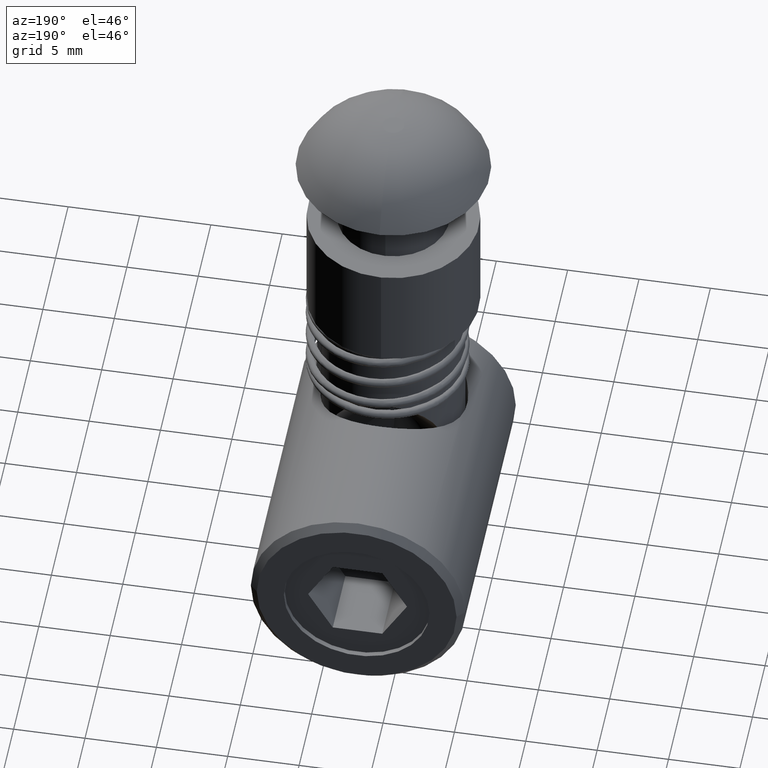
[diagram: clean part render]
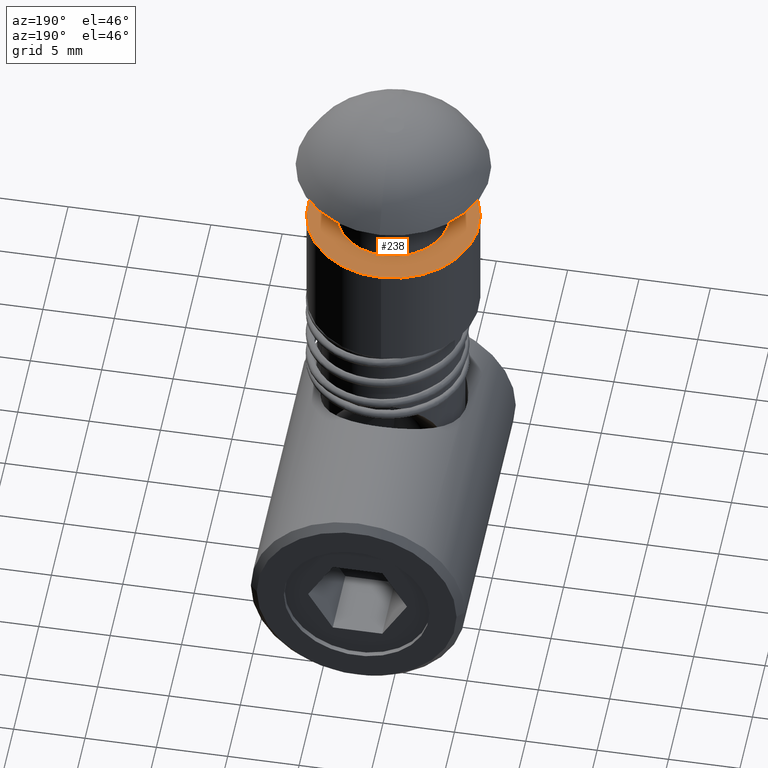
[diagram: same view with one face highlighted and labeled with its STEP entity id]
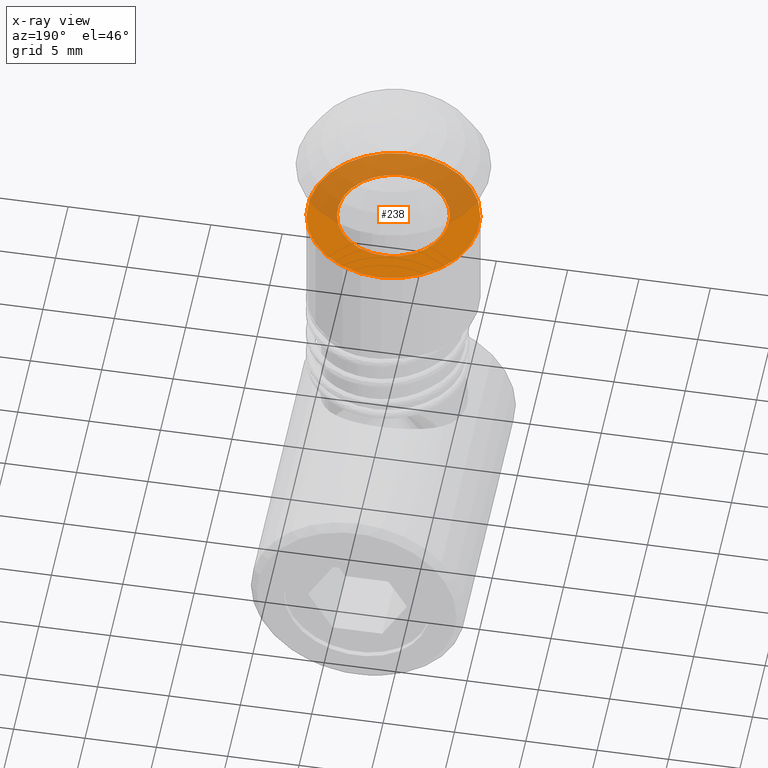
[diagram: x-ray of the same camera — body ghosted, the highlighted face saturated]
A machine part, auxiliary view. The second image highlights one B-rep face of the part: STEP entity #238.
The next image is the same camera in x-ray: the body ghosted, the highlighted face saturated — about 48% of this face is hidden behind the body in this view.
In plain terms, the highlighted planar face has unit normal (0, 0, 1).
Its self-contained STEP definition (entity closure, byte-faithful):
#23 = EDGE_CURVE ( 'NONE', #3472, #3525, #3195, .T. ) ;
#28 = EDGE_CURVE ( 'NONE', #3526, #3528, #3203, .T. ) ;
#37 = EDGE_CURVE ( 'NONE', #3528, #3526, #3212, .T. ) ;
#38 = EDGE_CURVE ( 'NONE', #3525, #3472, #3231, .T. ) ;
#238 = ADVANCED_FACE ( 'NONE', ( #3296, #3297 ), #490, .T. ) ;
#374 = AXIS2_PLACEMENT_3D ( 'NONE', #491, #492, #493 ) ;
#490 = PLANE ( 'NONE',  #374 ) ;
#491 = CARTESIAN_POINT ( 'NONE',  ( 6.072000000000000100, -6.072000000000000100, -34.00000000000000000 ) ) ;
#492 = DIRECTION ( 'NONE',  ( 0.0000000000000000000, 0.0000000000000000000, -1.000000000000000000 ) ) ;
#493 = DIRECTION ( 'NONE',  ( -1.000000000000000000, 0.0000000000000000000, 0.0000000000000000000 ) ) ;
#2021 = CARTESIAN_POINT ( 'NONE',  ( -6.000000000000000000, 7.347880794884119700E-016, -34.00000000000000000 ) ) ;
#2060 = CARTESIAN_POINT ( 'NONE',  ( 6.000000000000000000, 0.0000000000000000000, -34.00000000000000000 ) ) ;
#2061 = CARTESIAN_POINT ( 'NONE',  ( 3.899999999999999900, 0.0000000000000000000, -34.00000000000000000 ) ) ;
#2063 = CARTESIAN_POINT ( 'NONE',  ( -3.899999999999999900, 4.776122516674677300E-016, -34.00000000000000000 ) ) ;
#2192 = CARTESIAN_POINT ( 'NONE',  ( 0.0000000000000000000, 0.0000000000000000000, -34.00000000000000000 ) ) ;
#2193 = DIRECTION ( 'NONE',  ( 0.0000000000000000000, -0.0000000000000000000, 1.000000000000000000 ) ) ;
#2194 = DIRECTION ( 'NONE',  ( 1.000000000000000000, 0.0000000000000000000, 0.0000000000000000000 ) ) ;
#2218 = CARTESIAN_POINT ( 'NONE',  ( 0.0000000000000000000, 0.0000000000000000000, -34.00000000000000000 ) ) ;
#2219 = DIRECTION ( 'NONE',  ( 0.0000000000000000000, -0.0000000000000000000, 1.000000000000000000 ) ) ;
#2220 = DIRECTION ( 'NONE',  ( 1.000000000000000000, 0.0000000000000000000, 0.0000000000000000000 ) ) ;
#2221 = CARTESIAN_POINT ( 'NONE',  ( 0.0000000000000000000, 0.0000000000000000000, -34.00000000000000000 ) ) ;
#2222 = DIRECTION ( 'NONE',  ( -0.0000000000000000000, 0.0000000000000000000, -1.000000000000000000 ) ) ;
#2223 = DIRECTION ( 'NONE',  ( 1.000000000000000000, 0.0000000000000000000, 0.0000000000000000000 ) ) ;
#2671 = ORIENTED_EDGE ( 'NONE', *, *, #28, .T. ) ;
#2672 = ORIENTED_EDGE ( 'NONE', *, *, #37, .T. ) ;
#2673 = ORIENTED_EDGE ( 'NONE', *, *, #38, .T. ) ;
#2674 = ORIENTED_EDGE ( 'NONE', *, *, #23, .T. ) ;
#2858 = CARTESIAN_POINT ( 'NONE',  ( 0.0000000000000000000, 0.0000000000000000000, -34.00000000000000000 ) ) ;
#2859 = DIRECTION ( 'NONE',  ( -0.0000000000000000000, 0.0000000000000000000, -1.000000000000000000 ) ) ;
#2860 = DIRECTION ( 'NONE',  ( 1.000000000000000000, 0.0000000000000000000, 0.0000000000000000000 ) ) ;
#2977 = AXIS2_PLACEMENT_3D ( 'NONE', #2858, #2859, #2860 ) ;
#2980 = AXIS2_PLACEMENT_3D ( 'NONE', #2192, #2193, #2194 ) ;
#2988 = AXIS2_PLACEMENT_3D ( 'NONE', #2218, #2219, #2220 ) ;
#2989 = AXIS2_PLACEMENT_3D ( 'NONE', #2221, #2222, #2223 ) ;
#3162 = EDGE_LOOP ( 'NONE', ( #2671, #2672 ) ) ;
#3163 = EDGE_LOOP ( 'NONE', ( #2673, #2674 ) ) ;
#3195 = CIRCLE ( 'NONE', #2977, 6.000000000000000000 ) ;
#3203 = CIRCLE ( 'NONE', #2980, 3.899999999999999900 ) ;
#3212 = CIRCLE ( 'NONE', #2988, 3.899999999999999900 ) ;
#3231 = CIRCLE ( 'NONE', #2989, 6.000000000000000000 ) ;
#3296 = FACE_BOUND ( 'NONE', #3162, .T. ) ;
#3297 = FACE_OUTER_BOUND ( 'NONE', #3163, .T. ) ;
#3472 = VERTEX_POINT ( 'NONE', #2021 ) ;
#3525 = VERTEX_POINT ( 'NONE', #2060 ) ;
#3526 = VERTEX_POINT ( 'NONE', #2061 ) ;
#3528 = VERTEX_POINT ( 'NONE', #2063 ) ;